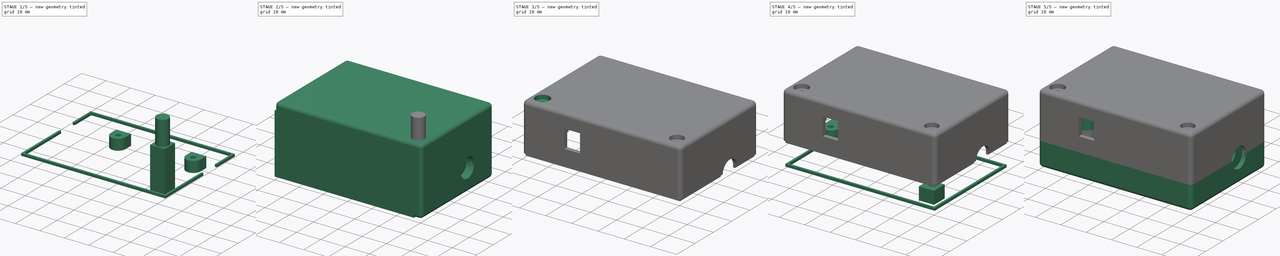
[diagram: build sequence overview — one tinted view per stage of 5, left to right]
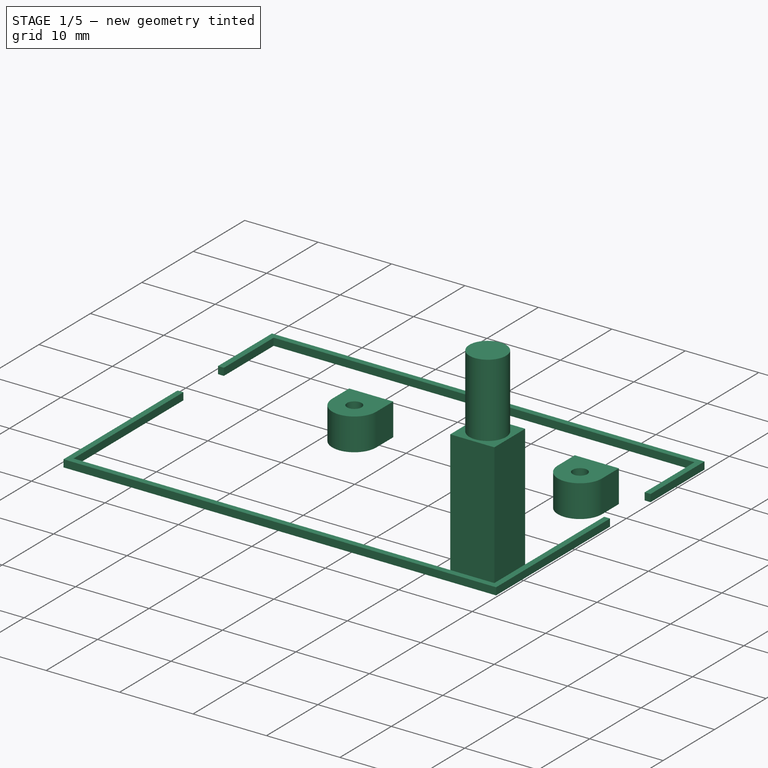
[diagram: stage 1 of 5 — iso view after this stage's code; geometry added in this stage tinted green]
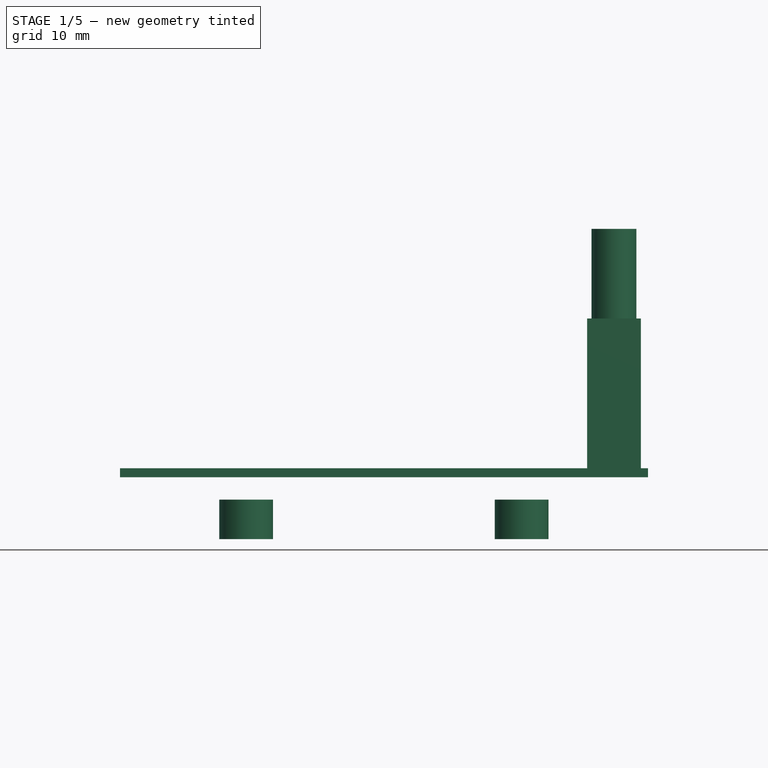
[diagram: stage 1 of 5 — front view after this stage's code; geometry added in this stage tinted green]
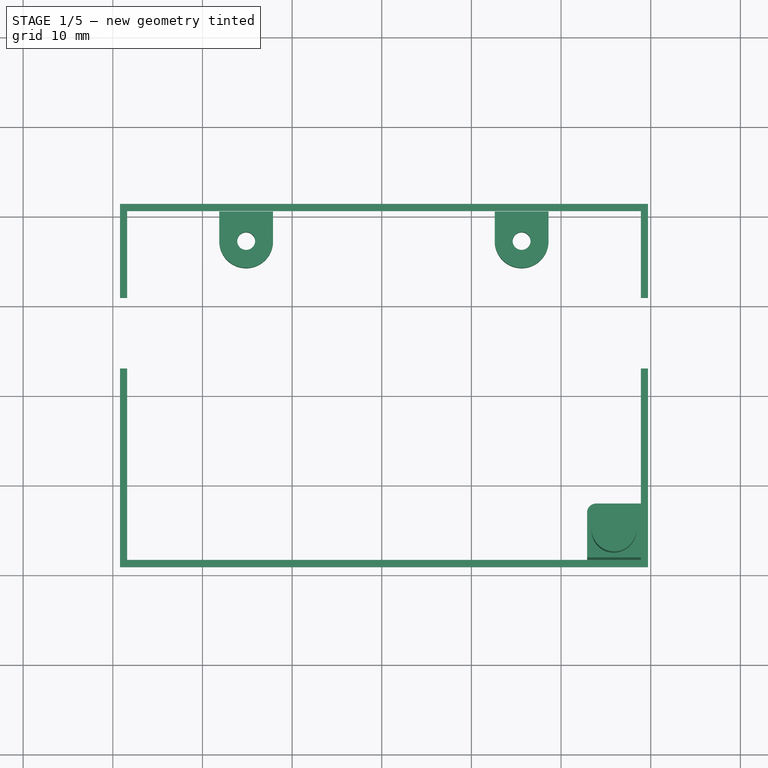
[diagram: stage 1 of 5 — top view after this stage's code; geometry added in this stage tinted green]
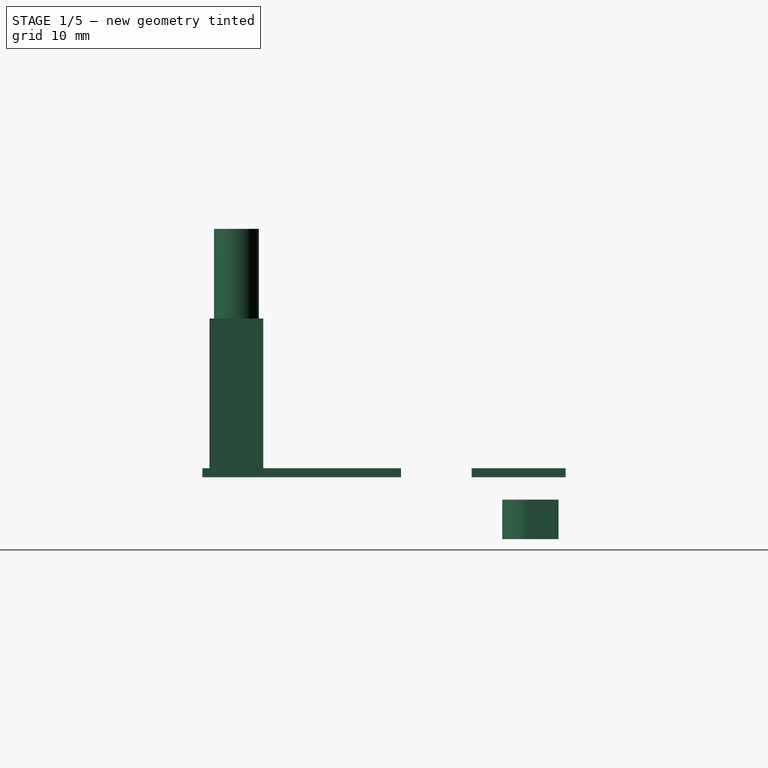
[diagram: stage 1 of 5 — right view after this stage's code; geometry added in this stage tinted green]
FCSTD DOCUMENT  (FreeCAD 1.0R39109 (Git))
Label: case
License: All rights reserved
LicenseURL: https://en.wikipedia.org/wiki/All_rights_reserved
objects: Part::Feature×36, Sketcher::SketchObject×11, PartDesign::Pad×10, App::Part×10, PartDesign::Body×10, Part::FeaturePython×10, Part::Cut×6, Part::MultiFuse×6, App::Link×5, Part::Extrusion×4, Part::Mirroring×3, Part::Plane×2, Part::Offset2D×2, Part::Face×2, Spreadsheet::Sheet×1, PartDesign::Fillet×1, PartDesign::CoordinateSystem×1, PartDesign::Boolean×1, App::DocumentObjectGroup×1
note: 135 computed .brp shape members not serialized (recipe doc carries the construction recipe); baked Part::Feature solids carry a one-line shape summary decoded from their .brp

FEATURE [Sketcher::SketchObject] Sketch004
  ArcFitTolerance = 1e-06
  AttachmentSupport = -> [XY_Plane017]
  FullyConstrained = true
  MakeInternals = false
  MapMode = 5
  expr: Constraints[8] = Spreadsheet.pcb_to_case_clearence + 2.275
  sketch-geometry (5):
    g0: ArcOfCircle CenterX=3 CenterY=3.275 CenterZ=0 NormalX=0 NormalY=0 NormalZ=1 AngleXU=0 Radius=3 StartAngle=0 EndAngle=3.14159
    g1: LineSegment StartX=0 StartY=3.275 StartZ=0 EndX=0 EndY=0 EndZ=0
    g2: LineSegment StartX=0 StartY=0 StartZ=0 EndX=6 EndY=0 EndZ=0
    g3: LineSegment StartX=6 StartY=0 StartZ=0 EndX=6 EndY=3.275 EndZ=0
    g4: Circle CenterX=3 CenterY=3.275 CenterZ=0 NormalX=0 NormalY=0 NormalZ=1 AngleXU=0 Radius=1
  constraints (14):
    c: Coincident(g1,g0)
    c: Vertical(g1)
    c: Coincident(g2,g1)
    c: Horizontal(g2)
    c: Coincident(g3,g2)
    c: Coincident(g3,g0)
    c: Vertical(g3)
    c: DistanceX(g2,g2) = 6
    c: DistanceY(g1,g1) = 3.275
    c: Equal(g1,g3)
    c: Horizontal(g0,g0)
    c: Diameter(g4) = 2
    c: Coincident(g4,g0)
    c: Coincident(g-1,g1)
FEATURE [PartDesign::Pad] Pad004
  Direction = (0,0,1)
  Length = 4.4
  Length2 = 10
  Profile = -> Sketch004
  ReferenceAxis = -> Sketch004 [N_Axis]
  Refine = true
  Suppressed = false
  Type = 0
  expr: Length = Spreadsheet.pcb_mounting_standoff_height - Spreadsheet.wall_width
FEATURE [PartDesign::Body] Body004  label="Körper"
  AllowCompound = false
  Group = -> [Sketch004,Pad004]
  Origin = -> Origin017
  Placement = pos=(11.875,1.6,1.6) rot=(0,0,1;0rad)
  Tip = -> Pad004
  expr: .Placement.Base.x = Spreadsheet.wall_width + Spreadsheet.pcb_to_case_clearence + Spreadsheet.cable_clamp_width + 2.275 - 3
  expr: .Placement.Base.y = Spreadsheet.wall_width
  expr: .Placement.Base.z = Spreadsheet.wall_width
FEATURE [Part::FeaturePython] Array001  label="Standoffs"  # Draft array (typed FeaturePython)
  AlwaysSyncPlacement = false
  Angle = 360
  ArrayType = 0
  Axis = (0,0,1)
  Base = -> Body004
  Center = (0,0,0)
  Count = 2
  ExpandArray = false
  Fuse = false
  IntervalAxis = (0,0,0)
  IntervalX = (30.725,0,0)
  IntervalY = (0,100,0)
  IntervalZ = (0,0,100)
  NumberCircles = 3
  NumberPolar = 5
  NumberX = 2
  NumberY = 1
  NumberZ = 1
  PlacementList = 2 placements: [(11.875,1.6,1.6),(42.6,1.6,1.6)]
  RadialDistance = 50
  ScaleList = (2) [(1,1,1),(1,1,1)]
  Symmetry = 1
  TangentialDistance = 25
FEATURE [Part::Mirroring] Part__Mirroring  label="Standoffs (Mirror #1)"
  Base = (0,0,0)
  Normal = (0,1,0)
  Placement = pos=(0,42.125,0) rot=(0,0,1;0rad)
  Source = -> Array001
  expr: .Placement.Base.y = Spreadsheet.wall_width * 2 + Spreadsheet.pcb_to_case_clearence * 2 + Spreadsheet.pcb_length
  expr: .Placement.Base.z = 0
FEATURE [Part::Feature] Face
  shape: bbox 58.9 x 10.49 x 2e-07 mm, 1 faces, 0 solids (baked)
FEATURE [Part::Extrusion] Extrude
  Base = -> Face
  Dir = (0,0,1)
  DirMode = 2
  FaceMakerClass = Part::FaceMakerBullseye
  FaceMakerMode = 3
  LengthFwd = 1
  LengthRev = 0
  Solid = false
  Symmetric = false
FEATURE [Part::Feature] Face001
  shape: bbox 58.9 x 22.16 x 2e-07 mm, 1 faces, 0 solids (baked)
FEATURE [Part::Extrusion] Extrude001
  Base = -> Face001
  Dir = (0,0,1)
  DirMode = 2
  FaceMakerClass = Part::FaceMakerBullseye
  FaceMakerMode = 3
  LengthFwd = 1
  LengthRev = 0
  Solid = false
  Symmetric = false
FEATURE [Sketcher::SketchObject] Sketch009
  ArcFitTolerance = 1e-06
  AttachmentSupport = -> [XY_Plane022]
  FullyConstrained = true
  MakeInternals = false
  MapMode = 5
  sketch-geometry (8):
    g0: LineSegment StartX=0 StartY=6 StartZ=0 EndX=0 EndY=0 EndZ=0
    g1: LineSegment StartX=0 StartY=0 StartZ=0 EndX=6 EndY=0 EndZ=0
    g2: LineSegment StartX=6 StartY=0 StartZ=0 EndX=6 EndY=5 EndZ=0
    g3: LineSegment StartX=5 StartY=6 StartZ=0 EndX=0 EndY=6 EndZ=0
    g4: ArcOfCircle CenterX=5 CenterY=5 CenterZ=0 NormalX=0 NormalY=0 NormalZ=1 AngleXU=0 Radius=1 StartAngle=2.84e-14 EndAngle=1.5708
    g5: GeomPoint [constr] X=6 Y=6 Z=0
    g6: GeomPoint X=3 Y=3 Z=0
    g7: Circle CenterX=3 CenterY=3 CenterZ=0 NormalX=0 NormalY=0 NormalZ=1 AngleXU=0 Radius=1.2
  constraints (18):
    c: Coincident(g0,g1)
    c: Coincident(g1,g2)
    c: Coincident(g3,g0)
    c: Vertical(g0)
    c: Vertical(g2)
    c: Horizontal(g1)
    c: Horizontal(g3)
    c: PointOnObject(g5,g2)
    c: PointOnObject(g5,g3)
    c: Tangent(g2,g4) = -1.5708
    c: Tangent(g3,g4) = -1.5708
    c: DistanceX(g1,g1) = 6
    c: Equal(g0,g1)
    c: Radius(g4) = 1
    c: Coincident(g0,g-1)
    c: Symmetric(g0,g1,g6)
    c: Diameter(g7) = 2.4
    c: Coincident(g7,g6)
FEATURE [PartDesign::Pad] Pad009
  Direction = (0,0,1)
  Length = 17
  Length2 = 10
  Profile = -> Sketch009
  ReferenceAxis = -> Sketch009 [N_Axis]
  Refine = true
  Suppressed = false
  Type = 0
  expr: Length = Spreadsheet.top_assembly_height + Spreadsheet.pcb_to_case_clearence
FEATURE [PartDesign::Body] Body009  label="Körper005"
  AllowCompound = false
  Group = -> [Sketch009,Pad009]
  Origin = -> Origin022
  Placement = pos=(1.6,1.6,9.2) rot=(0,0,1;0rad)
  Tip = -> Pad009
  expr: .Placement.Base.x = Spreadsheet.wall_width
  expr: .Placement.Base.y = Spreadsheet.wall_width
  expr: .Placement.Base.z = Spreadsheet.wall_width + Spreadsheet.pcb_mounting_standoff_height + Spreadsheet.pcb_thickness
FEATURE [Part::Mirroring] Part__Mirroring002  label="Körper005 (Mirror #3)"
  Base = (0,0,0)
  Normal = (1,0,0)
  Placement = pos=(60.5,0,0) rot=(0,0,1;0rad)
  Source = -> Body009
  expr: .Placement.Base.x = Spreadsheet.wall_width * 2 + Spreadsheet.pcb_to_case_clearence * 2 + Spreadsheet.pcb_width + Spreadsheet.cable_clamp_width * 2
FEATURE [Part::Feature] Wire
  shape: bbox 2.4 x 2.4 x 2e-07 mm, 0 faces, 0 solids (baked)
FEATURE [Part::Offset2D] Offset2D
  Fill = false
  Intersection = false
  Join = 0
  Mode = 1
  SelfIntersection = false
  Source = -> Wire
  Value = -1.3
FEATURE [Part::Face] Face002
  FaceMakerClass = Part::FaceMakerBullseye
  Sources = -> [Offset2D]
FEATURE [Part::Extrusion] Extrude002
  Base = -> Face002
  Dir = (0,0,1)
  DirMode = 2
  FaceMakerClass = Part::FaceMakerBullseye
  FaceMakerMode = 3
  LengthFwd = 10
  LengthRev = 0
  Solid = false
  Symmetric = false
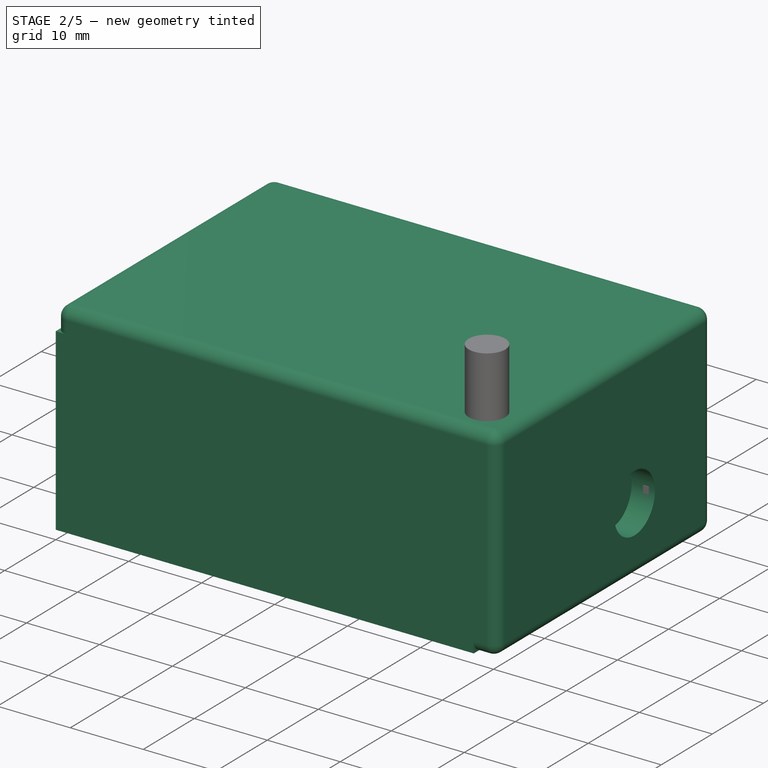
[diagram: stage 2 of 5 — iso view after this stage's code; geometry added in this stage tinted green]
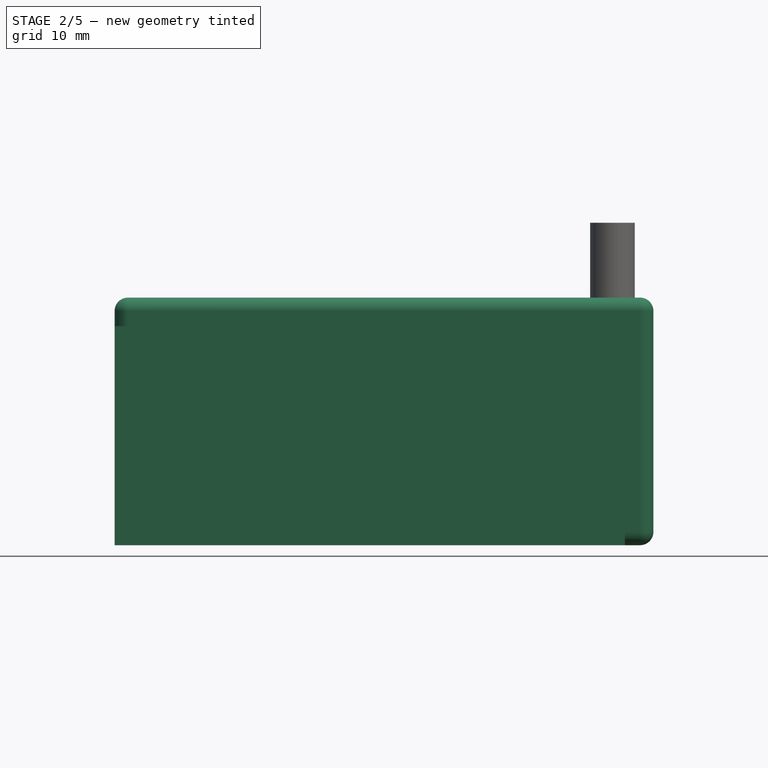
[diagram: stage 2 of 5 — front view after this stage's code; geometry added in this stage tinted green]
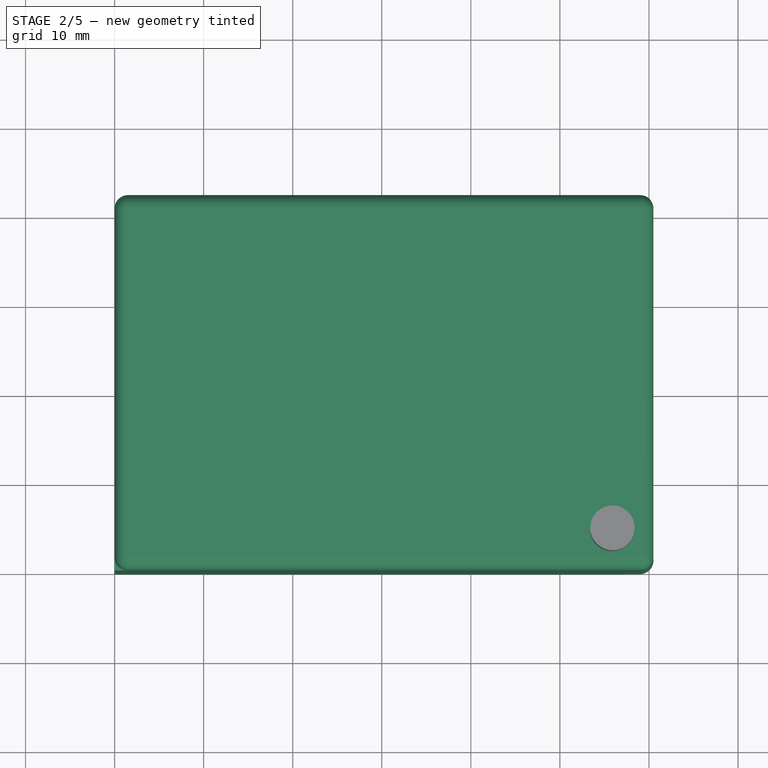
[diagram: stage 2 of 5 — top view after this stage's code; geometry added in this stage tinted green]
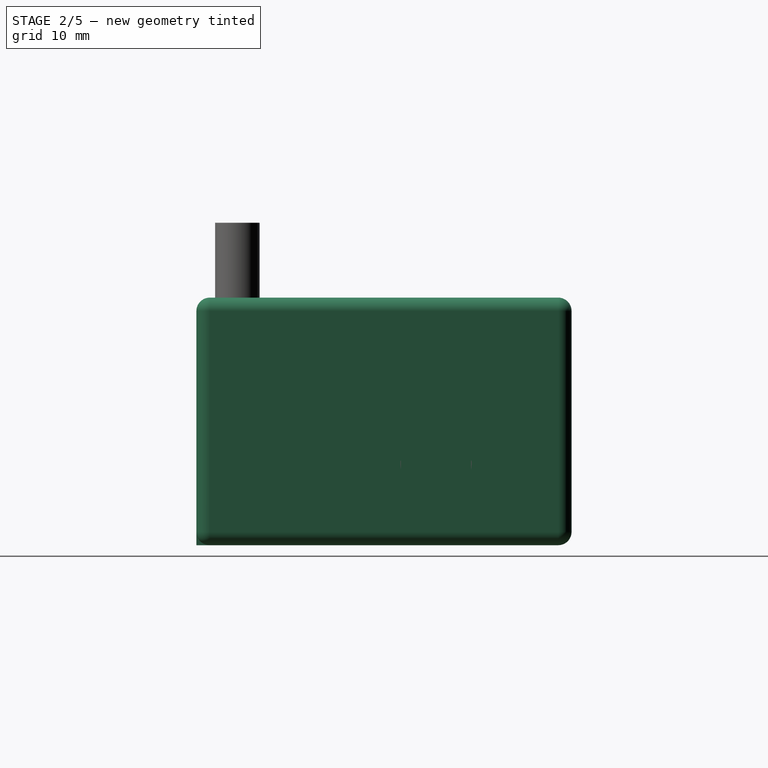
[diagram: stage 2 of 5 — right view after this stage's code; geometry added in this stage tinted green]
FEATURE [Sketcher::SketchObject] Sketch
  ArcFitTolerance = 1e-06
  AttachmentSupport = -> [XY_Plane013]
  FullyConstrained = true
  MakeInternals = false
  MapMode = 5
  expr: Constraints[8] = Spreadsheet.pcb_width + 2 * Spreadsheet.pcb_to_case_clearence + 2 * Spreadsheet.wall_width + 2 * Spreadsheet.cable_clamp_width
  expr: Constraints[9] = Spreadsheet.pcb_length + 2 * Spreadsheet.pcb_to_case_clearence + 2 * Spreadsheet.wall_width
  sketch-geometry (4):
    g0: LineSegment StartX=0 StartY=42.125 StartZ=0 EndX=0 EndY=0 EndZ=0
    g1: LineSegment StartX=0 StartY=0 StartZ=0 EndX=60.5 EndY=0 EndZ=0
    g2: LineSegment StartX=60.5 StartY=0 StartZ=0 EndX=60.5 EndY=42.125 EndZ=0
    g3: LineSegment StartX=60.5 StartY=42.125 StartZ=0 EndX=0 EndY=42.125 EndZ=0
  constraints (11):
    c: Coincident(g0,g1)
    c: Coincident(g1,g2)
    c: Coincident(g2,g3)
    c: Coincident(g3,g0)
    c: Vertical(g0)
    c: Vertical(g2)
    c: Horizontal(g1)
    c: Horizontal(g3)
    c: DistanceX(g3,g3) = 60.5
    c: DistanceY(g2,g2) = 42.125
    c: Coincident(g-1,g0)
FEATURE [PartDesign::Pad] Pad
  Direction = (0,0,1)
  Length = 27.8
  Length2 = 10
  Profile = -> Sketch
  ReferenceAxis = -> Sketch [N_Axis]
  Refine = true
  Suppressed = false
  Type = 0
  expr: Length = Spreadsheet.pcb_to_case_clearence + 2 * Spreadsheet.wall_width + Spreadsheet.pcb_mounting_standoff_height + Spreadsheet.top_assembly_height + Spreadsheet.pcb_thickness
FEATURE [Spreadsheet::Sheet] Spreadsheet
  cells = A1='pcb_length; B1(pcb_length)=36.925; A2='pcb_width; B2(pcb_width)=35.3; A3='wall_width; B3(wall_width)=1.6; A4='pcb_to_case_clearence; B4(pcb_to_case_clearence)=1; A5='cable_clamp_width; B5(cable_clamp_width)=10; A6='bottom_assembly_height; B6(bottom_assembly_height)=3; A7='top_assembly_height; B7(top_assembly_height)=16; A8='pcb_thickness; B8(pcb_thickness)=1.6; A9='pcb_mounting_standoff_height; B9(pcb_mounting_standoff_height)=6; A10='ir_receiver_pos_x; B10(ir_receiver_pos_x)=3.5; A11='ir_receiver_pos_z; B11(ir_receiver_pos_z)=6; A12='ir_receiver_package_height; B12(ir_receiver_package_height)=7; A13='ir_receiver_package_width; B13(ir_receiver_package_width)=6; A14='ir_receiver_clearence; B14(ir_receiver_clearence)=1; A15='cable_inlet_pos_y; B15(cable_inlet_pos_y)=24.3; A16='cable_inlet_diameter; B16(cable_inlet_diameter)=8
FEATURE [PartDesign::Fillet] Fillet
  Base = -> Pad [Edge1]
  BaseFeature = -> Pad
  Radius = 1.5
  Refine = true
  SupportTransform = false
  Suppressed = false
  UseAllEdges = true
FEATURE [PartDesign::CoordinateSystem] Local_CS_ec94
  AttacherType = Attacher::AttachEngine3D
  MapMode = 2
FEATURE [Part::Feature] Pcb_ec94
  Placement = pos=(-85.3,71.725,0) rot=(0,0,1;0rad)
  shape: bbox 35.3 x 36.93 x 1.67 mm, 29 faces (baked)
FEATURE [Sketcher::SketchObject] PCB_Sketch_ec94
  ArcFitTolerance = 1e-06
  FullyConstrained = false
  MakeInternals = false
  sketch-geometry (4):
    g0: LineSegment StartX=0 StartY=36.925 StartZ=0 EndX=35.3 EndY=36.925 EndZ=0
    g1: LineSegment StartX=35.3 StartY=36.925 StartZ=0 EndX=35.3 EndY=0 EndZ=0
    g2: LineSegment StartX=35.3 StartY=0 StartZ=0 EndX=0 EndY=0 EndZ=0
    g3: LineSegment StartX=0 StartY=0 StartZ=0 EndX=0 EndY=36.925 EndZ=0
  constraints (4):
    c: Coincident(g2,g3)
    c: Coincident(g0,g3)
    c: Coincident(g1,g2)
    c: Coincident(g0,g1)
FEATURE [Part::Feature] Shape  label="U2_SOT_23_5_863a62e270d0"
  Placement = pos=(8.44,10.5675,0) rot=(0,0,-1;1.5708rad)
  shape: bbox 2.9 x 2.8 x 1.55 mm, 109 faces (baked)
FEATURE [Part::Feature] Shape001  label="J2_TerminalBlock_Phoenix_PT_15_3_50_H_1x03_P500mm_Horizontal_8e5a26944e39"
  Placement = pos=(30.3,19.325,0) rot=(0,0,1;1.5708rad)
  shape: bbox 9 x 15.57 x 15 mm, 176 faces (baked)
FEATURE [Part::Feature] Part__Feature  label="GO-100184"
  shape: bbox 6 x 6.95 x 5.55 mm, 17 faces (baked)
FEATURE [Part::Feature] Part__Feature001  label="GO-100184.032"
  Placement = pos=(8.6e-15,-4.25,1.3) rot=(0,0,1;0rad)
  shape: bbox 1.24 x 6 x 5.2 mm, 30 faces (baked)
FEATURE [Part::Feature] Part__Feature002  label="GO-100184.033"
  Placement = pos=(8.6e-15,-4.25,1.3) rot=(0,0,1;0rad)
  shape: bbox 0.7 x 6 x 5.2 mm, 22 faces (baked)
FEATURE [Part::Feature] Part__Feature003  label="GO-100184.034"
  Placement = pos=(8.6e-15,-4.25,1.3) rot=(0,0,1;0rad)
  shape: bbox 1.24 x 6 x 5.2 mm, 30 faces (baked)
FEATURE [App::Part] GO_100184_032  label="GO-100184.035"
  Group = -> [Part__Feature001,Part__Feature002,Part__Feature003]
  Origin = -> Origin008
FEATURE [App::Part] GO_100184_32  label="A1_82736Mold_DL_21170e808637"
  Group = -> [Part__Feature,GO_100184_032]
  Origin = -> Origin009
  Placement = pos=(7.953,5.48,9) rot=(1,0,0;1.5708rad)
FEATURE [Part::Feature] Shape002  label="C3_CP_Elec_10x125_846d0c8a04ca"
  Placement = pos=(17.0075,6.6,0) rot=(0,0,1;3.14159rad)
  shape: bbox 13.47 x 13.66 x 12.5 mm, 41 faces (baked)
FEATURE [Part::Feature] Shape003  label="C6_C_0805_2012Metric_19e55b627c06"
  Placement = pos=(8.465,7.43,0) rot=(0,0,1;3.14159rad)
  shape: bbox 2 x 1.25 x 1.25 mm, 28 faces (baked)
FEATURE [App::Link] J2_TerminalBlock_Phoenix_PT_15_3_50_H_1x03_P500mm_Horizontal_8e5a26944e39_ln_  label="J1_TerminalBlock_Phoenix_PT_15_3_50_H_1x03_P500mm_Horizontal_288ad81824c9"
  LinkPlacement = pos=(5,29.325,0) rot=(0,0,-1;1.5708rad)
  LinkedObject = -> Shape001
  Placement = pos=(5,29.325,0) rot=(0,0,-1;1.5708rad)
FEATURE [Part::Feature] Shape004  label="R4_R_Axial_DIN0516_L155mm_D50mm_P762mm_Vertical_b73bf4800ee1"
  Placement = pos=(32.325,13.485,0) rot=(0,0,-1;1.5708rad)
  shape: bbox 5.412 x 10.86 x 22.23 mm, 17 faces (baked)
FEATURE [Part::Feature] Shape005  label="C1_C_Rect_L180mm_W80mm_P1500mm_FKS3_FKP3_27f843e74350"
  Placement = pos=(21.375,29.525,0) rot=(0,0,-1;1.5708rad)
  shape: bbox 8 x 18 x 16.9 mm, 22 faces (baked)
FEATURE [Part::Feature] Shape006  label="D1_Diode_Bridge_Diotec_ABS_f9176e805c13"
  Placement = pos=(26.65,8.8,0) rot=(0,0,1;1.5708rad)
  shape: bbox 5 x 6.2 x 1.6 mm, 44 faces (baked)
FEATURE [Part::Feature] Part__Feature004  label="36911000000"
  shape: bbox 8.5 x 8 x 4 mm, 35 faces (baked)
FEATURE [Part::Feature] Part__Feature005  label="36911000000001"
  shape: bbox 0.6 x 19.9 x 0.6 mm, 4 faces (baked)
FEATURE [Part::Feature] Part__Feature006  label="36911000000002"
  shape: bbox 0.6 x 19.9 x 0.6 mm, 4 faces (baked)
FEATURE [App::Part] _6911000000  label="F1_36911000000003_523b0714f035[2]"
  Group = -> [Part__Feature004,Part__Feature005,Part__Feature006]
  Origin = -> Origin010
  Placement = pos=(21.4,34.025,0) rot=(1,0,0;1.5708rad)
FEATURE [Part::Feature] Part__Feature007  label="100101"
  shape: bbox 3.961 x 21.53 x 23.63 mm, 125 faces, 0 solids (baked)
FEATURE [Part::Feature] Part__Feature008  label="100101001"
  shape: bbox 0.04468 x 1.209 x 3.516 mm, 13 faces, 0 solids (baked)
FEATURE [Part::Feature] Part__Feature009  label="100101002"
  shape: bbox 0.03884 x 1.296 x 2.389 mm, 8 faces, 0 solids (baked)
FEATURE [Part::Feature] Part__Feature010  label="100101003"
  shape: bbox 0.04414 x 1.576 x 2.551 mm, 8 faces, 0 solids (baked)
FEATURE [Part::Feature] Part__Feature011  label="100101004"
  shape: bbox 0.04511 x 1.582 x 2.758 mm, 9 faces, 0 solids (baked)
FEATURE [Part::Feature] Part__Feature012  label="100101005"
  shape: bbox 0.03983 x 1.191 x 1.959 mm, 7 faces, 0 solids (baked)
FEATURE [Part::Feature] Part__Feature013  label="100101006"
  shape: bbox 0.03814 x 1.218 x 1.741 mm, 5 faces, 0 solids (baked)
FEATURE [App::Part] _00101  label="K1_100101007_b6f01e361f50"
  Group = -> [Part__Feature007,Part__Feature008,Part__Feature009,Part__Feature010,Part__Feature011,Part__Feature012,Part__Feature013]
  Origin = -> Origin011
  Placement = pos=(24.5015,32.625,-17) rot=(0,0.707107,0.707107;3.14159rad)
FEATURE [Part::Feature] Shape007  label="D2_D_SOD_123F_6e59eb8ac936"
  Placement = pos=(26.825,3.25,0) rot=(0,0,1;0rad)
  shape: bbox 3.5 x 1.6 x 1.1 mm, 27 faces (baked)
FEATURE [App::Link] C6_C_0805_2012Metric_19e55b627c06_ln_  label="C5_C_0805_2012Metric_7bf58663db9d"
  LinkPlacement = pos=(5.715,8.3675,0) rot=(0,0,-1;1.5708rad)
  LinkedObject = -> Shape003
  Placement = pos=(5.715,8.3675,0) rot=(0,0,-1;1.5708rad)
FEATURE [Part::Feature] Shape008  label="C4_C_0603_1608Metric_3f43c1c5a1fa"
  Placement = pos=(7.64,13.38,0) rot=(0,0,1;0rad)
  shape: bbox 1.6 x 0.8 x 0.8 mm, 28 faces (baked)
FEATURE [App::Part] Top_ec94
  Group = -> [Shape,Shape001,GO_100184_32,Shape002,Shape003,J2_TerminalBlock_Phoenix_PT_15_3_50_H_1x03_P500mm_Horizontal_8e5a26944e39_ln_,Shape004,Shape005,Shape006,_6911000000,_00101,Shape007,C6_C_0805_2012Metric_19e55b627c06_ln_,Shape008]
  Origin = -> Origin003
FEATURE [Part::Feature] Shape009  label="R3_R_0805_2012Metric_d859491b059c"
  Placement = pos=(22.125,18.775,-1.67) rot=(1,0,0;3.14159rad)
  shape: bbox 2 x 1.2 x 0.45 mm, 26 faces (baked)
FEATURE [Part::Feature] Shape010  label="Q1_SOT_23_3900012b851c"
  Placement = pos=(2.82,10.0375,0) rot=(0,0,1;1.5708rad)
  shape: bbox 3 x 2.5 x 1.2 mm, 76 faces (baked)
FEATURE [App::Link] R3_R_0805_2012Metric_d859491b059c_ln_  label="R5_R_0805_2012Metric_0fcbfa2053b6"
  LinkPlacement = pos=(2.7525,7.1375,0) rot=(0,0,1;3.14159rad)
  LinkedObject = -> Shape009
  Placement = pos=(2.7525,7.1375,0) rot=(0,0,1;3.14159rad)
FEATURE [App::Link] R3_R_0805_2012Metric_d859491b059c_ln_001  label="R2_R_0805_2012Metric_7688ddab6872"
  LinkPlacement = pos=(22.125,20.275,-1.67) rot=(0,1,0;3.14159rad)
  LinkedObject = -> Shape009
  Placement = pos=(22.125,20.275,-1.67) rot=(0,1,0;3.14159rad)
FEATURE [App::Link] R3_R_0805_2012Metric_d859491b059c_ln_002  label="R1_R_0805_2012Metric_b52fa367cd21"
  LinkPlacement = pos=(22.125,21.775,-1.67) rot=(1,0,0;3.14159rad)
  LinkedObject = -> Shape009
  Placement = pos=(22.125,21.775,-1.67) rot=(1,0,0;3.14159rad)
FEATURE [App::Part] Bot_ec94
  Group = -> [Shape009,Shape010,R3_R_0805_2012Metric_d859491b059c_ln_,R3_R_0805_2012Metric_d859491b059c_ln_001,R3_R_0805_2012Metric_d859491b059c_ln_002]
  Origin = -> Origin004
FEATURE [App::Part] Step_Models_ec94
  Group = -> [Top_ec94,Bot_ec94]
  Origin = -> Origin002
FEATURE [Sketcher::SketchObject] Sketch001
  ArcFitTolerance = 1e-06
  AttachmentSupport = -> [XY_Plane015]
  FullyConstrained = true
  MakeInternals = false
  MapMode = 5
  expr: Constraints[10] = Spreadsheet.ir_receiver_package_height
  expr: Constraints[9] = Spreadsheet.ir_receiver_package_width
  sketch-geometry (4):
    g0: LineSegment StartX=0 StartY=7 StartZ=0 EndX=0 EndY=0 EndZ=0
    g1: LineSegment StartX=0 StartY=0 StartZ=0 EndX=6 EndY=0 EndZ=0
    g2: LineSegment StartX=6 StartY=0 StartZ=0 EndX=6 EndY=7 EndZ=0
    g3: LineSegment StartX=6 StartY=7 StartZ=0 EndX=0 EndY=7 EndZ=0
  constraints (11):
    c: Coincident(g0,g1)
    c: Coincident(g1,g2)
    c: Coincident(g2,g3)
    c: Coincident(g3,g0)
    c: Vertical(g0)
    c: Vertical(g2)
    c: Horizontal(g1)
    c: Horizontal(g3)
    c: Coincident(g0,g-1)
    c: DistanceX(g3,g3) = 6
    c: DistanceY(g2,g2) = 7
FEATURE [PartDesign::Pad] Pad001
  Direction = (0,0,1)
  Length = 7
  Length2 = 10
  Profile = -> Sketch001
  ReferenceAxis = -> Sketch001 [N_Axis]
  Refine = true
  Suppressed = false
  Type = 0
  expr: Length = Spreadsheet.ir_receiver_package_height
FEATURE [PartDesign::Body] Body002  label="IR receiver opening"
  AllowCompound = false
  Group = -> [Sketch001,Pad001]
  Origin = -> Origin015
  Placement = pos=(16.1,-2,15.2) rot=(0,0,1;0rad)
  Tip = -> Pad001
  expr: .Placement.Base.x = Spreadsheet.ir_receiver_pos_x + Spreadsheet.wall_width + Spreadsheet.cable_clamp_width + Spreadsheet.pcb_to_case_clearence
  expr: .Placement.Base.z = Spreadsheet.wall_width + Spreadsheet.pcb_mounting_standoff_height + Spreadsheet.pcb_thickness + Spreadsheet.ir_receiver_pos_z
FEATURE [Part::Plane] Plane  label="Ebene"
  AttacherType = Attacher::AttachEngine3D
  Length = 67
  Placement = pos=(-3,-3,9.5) rot=(0,0,1;0rad)
  Width = 48
FEATURE [PartDesign::Boolean] Boolean
  BaseFeature = -> Fillet
  Group = -> [Body002]
  Refine = true
  Suppressed = false
  Type = 1
  UsePlacement = true
FEATURE [PartDesign::Body] Body  label="Enclosure"
  AllowCompound = false
  Group = -> [Sketch,Pad,Fillet,Boolean]
  Origin = -> Origin013
  Tip = -> Boolean
FEATURE [Sketcher::SketchObject] Sketch002
  ArcFitTolerance = 1e-06
  AttachmentSupport = -> [YZ_Plane014]
  FullyConstrained = true
  MakeInternals = false
  MapMode = 5
  Placement = pos=(0,0,0) rot=(0.57735,0.57735,0.57735;2.0944rad)
  expr: Constraints[0] = Spreadsheet.cable_inlet_diameter
  expr: Constraints[1] = Spreadsheet.cable_inlet_diameter / 2
  expr: Constraints[2] = Spreadsheet.cable_inlet_diameter / 2
  sketch-geometry (1):
    g0: Circle CenterX=4 CenterY=4 CenterZ=0 NormalX=0 NormalY=0 NormalZ=1 AngleXU=0 Radius=4
  constraints (3):
    c: Diameter(g0) = 8
    c: DistanceX(g0) = 4
    c: DistanceY(g0) = 4
FEATURE [PartDesign::Pad] Pad002
  Direction = (1,0,0)
  Length = 10
  Length2 = 10
  Placement = pos=(0,0,0) rot=(1,1,1;2.0944rad)
  Profile = -> Sketch002
  ReferenceAxis = -> Sketch002 [N_Axis]
  Refine = true
  Suppressed = false
  Type = 0
FEATURE [PartDesign::Body] Body001  label="Cable inlet"
  AllowCompound = false
  Group = -> [Sketch002,Pad002]
  Origin = -> Origin014
  Placement = pos=(-3,22.9,5.2) rot=(0,0,1;0rad)
  Tip = -> Pad002
  expr: .Placement.Base.y = Spreadsheet.cable_inlet_pos_y - Spreadsheet.cable_inlet_diameter / 2 + Spreadsheet.wall_width + Spreadsheet.pcb_to_case_clearence
  expr: .Placement.Base.z = Spreadsheet.wall_width + Spreadsheet.pcb_mounting_standoff_height + Spreadsheet.pcb_thickness - Spreadsheet.cable_inlet_diameter / 2
FEATURE [Part::FeaturePython] Array  # Draft array (typed FeaturePython)
  AlwaysSyncPlacement = false
  Angle = 360
  ArrayType = 0
  Axis = (0,0,1)
  Base = -> Body001
  Center = (0,0,0)
  Count = 2
  ExpandArray = false
  Fuse = false
  IntervalAxis = (0,0,0)
  IntervalX = (56,0,0)
  IntervalY = (0,100,7)
  IntervalZ = (0,0,100)
  NumberCircles = 3
  NumberPolar = 5
  NumberX = 2
  NumberY = 1
  NumberZ = 1
  PlacementList = 2 placements: [(-3,22.9,5.2),(53,22.9,5.2)]
  RadialDistance = 50
  ScaleList = (2) [(1,1,1),(1,1,1)]
  Symmetry = 1
  TangentialDistance = 25
FEATURE [Part::Cut] Cut  label="Enclosure001"
  Base = -> Body
  Refine = true
  Tool = -> Array
FEATURE [Sketcher::SketchObject] Sketch003
  ArcFitTolerance = 1e-06
  AttachmentSupport = -> [XY_Plane016]
  FullyConstrained = true
  MakeInternals = false
  MapMode = 5
  expr: Constraints[8] = Spreadsheet.pcb_to_case_clearence * 2 + Spreadsheet.cable_clamp_width * 2 + Spreadsheet.pcb_width
  expr: Constraints[9] = Spreadsheet.pcb_length + 2 * Spreadsheet.pcb_to_case_clearence
  sketch-geometry (4):
    g0: LineSegment StartX=0 StartY=38.925 StartZ=0 EndX=0 EndY=0 EndZ=0
    g1: LineSegment StartX=0 StartY=0 StartZ=0 EndX=57.3 EndY=0 EndZ=0
    g2: LineSegment StartX=57.3 StartY=0 StartZ=0 EndX=57.3 EndY=38.925 EndZ=0
    g3: LineSegment StartX=57.3 StartY=38.925 StartZ=0 EndX=0 EndY=38.925 EndZ=0
  constraints (11):
    c: Coincident(g0,g1)
    c: Coincident(g1,g2)
    c: Coincident(g2,g3)
    c: Coincident(g3,g0)
    c: Vertical(g0)
    c: Vertical(g2)
    c: Horizontal(g1)
    c: Horizontal(g3)
    c: DistanceX(g3,g3) = 57.3
    c: DistanceY(g2,g2) = 38.925
    c: Coincident(g0,g-1)
FEATURE [PartDesign::Pad] Pad003
  Direction = (0,0,1)
  Length = 24.6
  Length2 = 10
  Profile = -> Sketch003
  ReferenceAxis = -> Sketch003 [N_Axis]
  Refine = true
  Suppressed = false
  Type = 0
  expr: Length = Spreadsheet.pcb_thickness + Spreadsheet.pcb_mounting_standoff_height + Spreadsheet.top_assembly_height + Spreadsheet.pcb_to_case_clearence
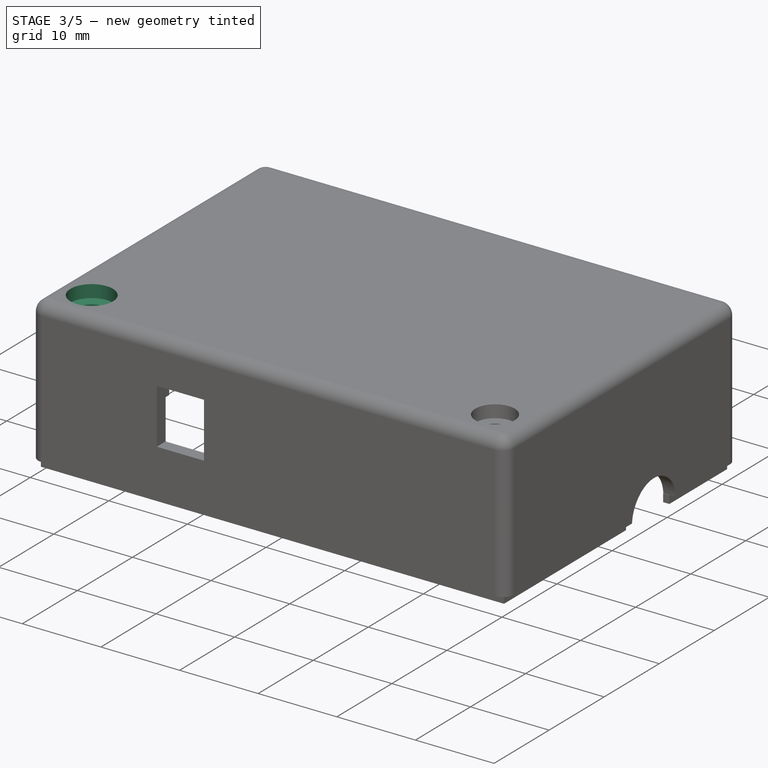
[diagram: stage 3 of 5 — iso view after this stage's code; geometry added in this stage tinted green]
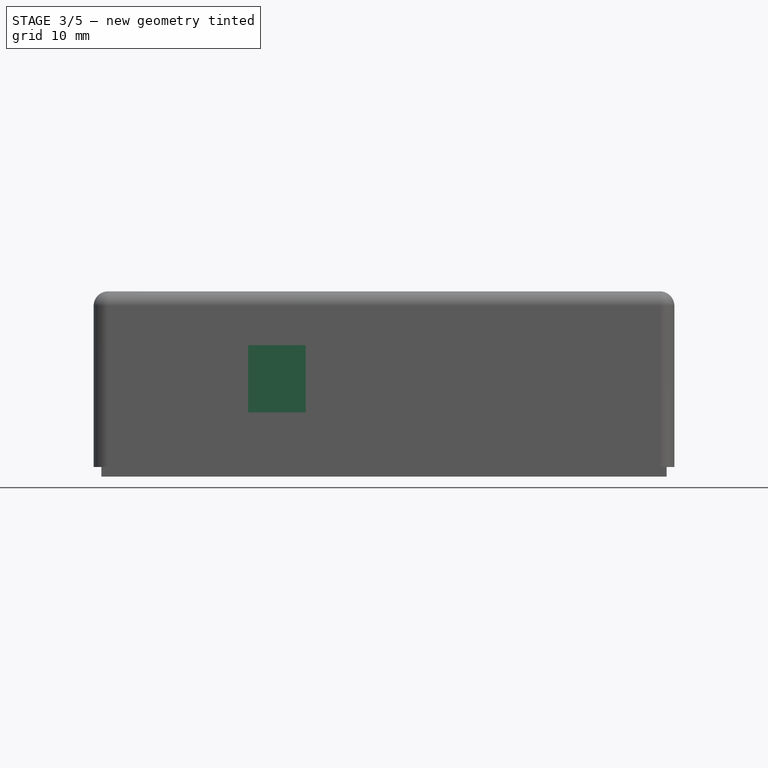
[diagram: stage 3 of 5 — front view after this stage's code; geometry added in this stage tinted green]
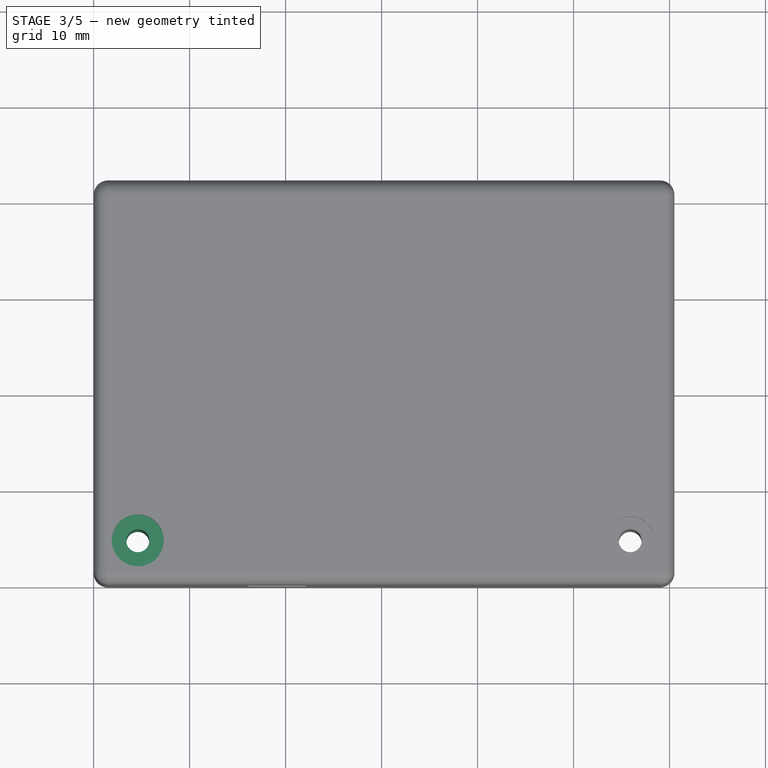
[diagram: stage 3 of 5 — top view after this stage's code; geometry added in this stage tinted green]
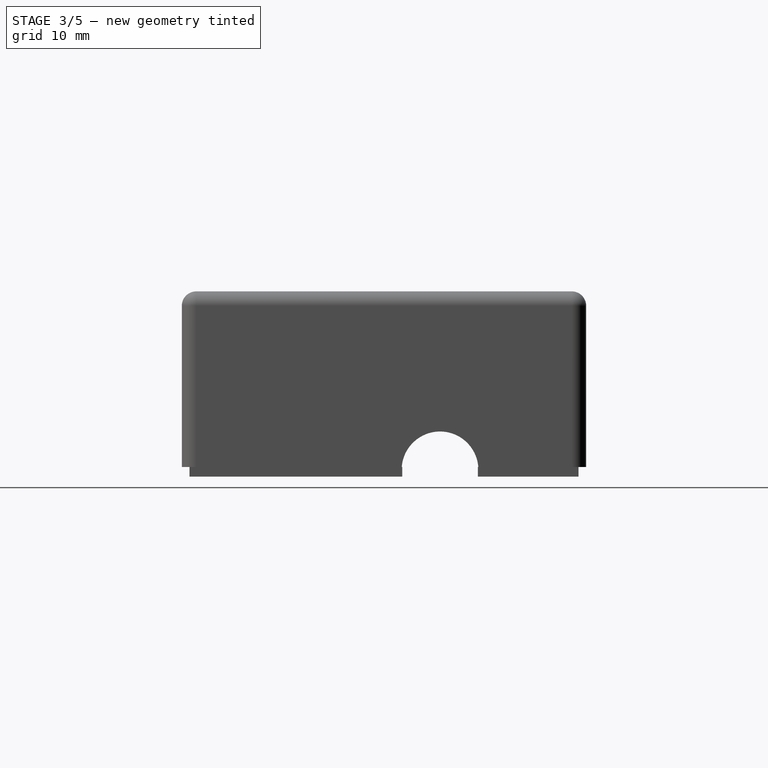
[diagram: stage 3 of 5 — right view after this stage's code; geometry added in this stage tinted green]
FEATURE [PartDesign::Body] Body003  label="Inner"
  AllowCompound = false
  Group = -> [Sketch003,Pad003]
  Origin = -> Origin016
  Placement = pos=(1.6,1.6,1.6) rot=(0,0,1;0rad)
  Tip = -> Pad003
  expr: .Placement.Base.x = Spreadsheet.wall_width
  expr: .Placement.Base.y = Spreadsheet.wall_width
  expr: .Placement.Base.z = Spreadsheet.wall_width
FEATURE [Part::Cut] Cut001  label="Hollow case"
  Base = -> Cut
  Refine = true
  Tool = -> Body003
FEATURE [Part::MultiFuse] Fusion  label="Closed case"
  Refine = true
  Shapes = -> [Part__Mirroring,Cut001]
FEATURE [Part::FeaturePython] Slice  # WARN: FeaturePython — macro-defined, semantics opaque (R4)
  Base = -> Fusion
  Mode = 1
  Tolerance = 0
  Tools = -> [Plane]
FEATURE [Part::FeaturePython] Slice_child1  label="Slice.1"  # WARN: FeaturePython — macro-defined, semantics opaque (R4)
  Base = -> Slice
  FilterType = 1
  Invert = false
  OverrideMaxVal = 0
  WindowFrom = 80
  WindowTo = 100
  items = 1
FEATURE [Part::MultiFuse] Fusion003
  Refine = true
  Shapes = -> [Extrude001,Extrude,Slice_child1]
FEATURE [Part::MultiFuse] Fusion005
  Refine = true
  Shapes = -> [Body009,Part__Mirroring002,Fusion003]
FEATURE [Part::Feature] Wire001
  shape: bbox 2.4 x 2.4 x 2e-07 mm, 0 faces, 0 solids (baked)
FEATURE [Part::Offset2D] Offset2D001
  Fill = false
  Intersection = false
  Join = 0
  Mode = 1
  SelfIntersection = false
  Source = -> Wire001
  Value = 1.5
FEATURE [Part::Face] Face003
  FaceMakerClass = Part::FaceMakerBullseye
  Sources = -> [Offset2D001]
FEATURE [Part::Extrusion] Extrude003
  Base = -> Face003
  Dir = (0,0,1)
  DirMode = 2
  FaceMakerClass = Part::FaceMakerBullseye
  FaceMakerMode = 3
  LengthFwd = 10
  LengthRev = 0
  Solid = false
  Symmetric = false
FEATURE [Part::Cut] Cut004
  Base = -> Fusion005
  Refine = true
  Tool = -> Extrude002
FEATURE [Part::Cut] Cut005  label="Top final"
  Base = -> Cut004
  Refine = true
  Tool = -> Extrude003
FEATURE [App::Part] Part  label="Case001"
  Group = -> [Body001,Body004,Plane001,Body005,Body006,Cut002,Slice001,Slice001_child0,Slice001_child1,GrExplode_Slice001,Array003,Cut003,Body,Plane,Array,Cut,Body003,Cut001,Array001,Part__Mirroring,Fusion,Slice,Slice_child0,Slice_child1,Fusion001,Body009,Array002,Fusion002,Body007,Face,Part__Mirroring002,Extrude,Extrude001,Fusion003,Face001,Body008,Part__Mirroring001,Fusion004,Fusion005,Face002,Offset2D,+6 more]
  Origin = -> Origin012
FEATURE [Part::Feature] pads_area004  label="topPads_ec095"
  Placement = pos=(-85.3,71.725,0.02) rot=(0,0,1;0rad)
  shape: bbox 33.18 x 35.76 x 2e-07 mm, 70 faces, 0 solids (baked)
FEATURE [Part::Feature] Shape016  label="topTracks_ec095"
  Placement = pos=(-85.3,71.725,0.01) rot=(0,0,1;0rad)
  shape: bbox 30.53 x 32.92 x 2e-07 mm, 12 faces, 0 solids (baked)
FEATURE [Part::Feature] zones_area004  label="topZones_ec095"
  Placement = pos=(-85.3,71.725,0.01) rot=(0,0,1;0rad)
  shape: bbox 34.75 x 36.37 x 2e-07 mm, 9 faces, 0 solids (baked)
FEATURE [Part::Feature] pads_area006  label="botPads_ec095"
  Placement = pos=(-85.3,71.725,-1.69) rot=(0,0,1;0rad)
  shape: bbox 33.18 x 35.76 x 2e-07 mm, 52 faces, 0 solids (baked)
FEATURE [Part::Feature] Shape018  label="botTracks_ec095"
  Placement = pos=(-85.3,71.725,-1.68) rot=(0,0,1;0rad)
  shape: bbox 28.12 x 20.28 x 2e-07 mm, 6 faces, 0 solids (baked)
FEATURE [Part::Feature] zones_area006  label="botZones_ec095"
  Placement = pos=(-85.3,71.725,-1.68) rot=(0,0,1;0rad)
  shape: bbox 34.75 x 36.37 x 2e-07 mm, 3 faces, 0 solids (baked)
FEATURE [App::Part] Board_Geoms_ec94
  Group = -> [Pcb_ec94,PCB_Sketch_ec94,pads_area004,Shape016,zones_area004,pads_area006,Shape018,zones_area006]
  Origin = -> Origin
FEATURE [App::Part] Board_ec94  label="switch_pcb"
  Group = -> [Local_CS_ec94,Board_Geoms_ec94,Step_Models_ec94]
  Origin = -> Origin001
  Placement = pos=(12.6,2.6,7.6) rot=(0,0,1;0rad)
  expr: .Placement.Base.x = Spreadsheet.wall_width + Spreadsheet.pcb_to_case_clearence + Spreadsheet.cable_clamp_width
  expr: .Placement.Base.y = Spreadsheet.wall_width + Spreadsheet.pcb_to_case_clearence
  expr: .Placement.Base.z = Spreadsheet.wall_width + Spreadsheet.pcb_mounting_standoff_height
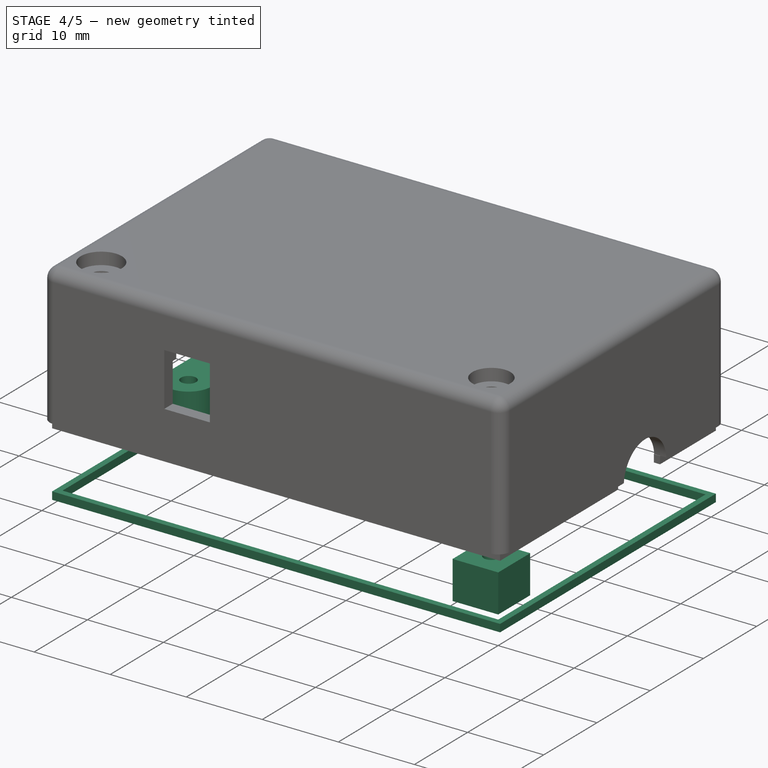
[diagram: stage 4 of 5 — iso view after this stage's code; geometry added in this stage tinted green]
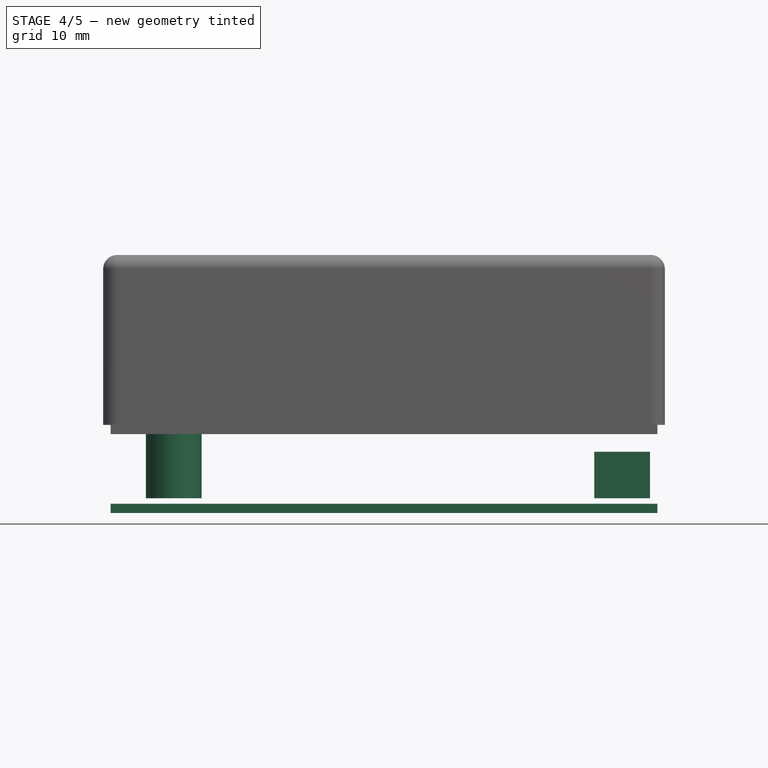
[diagram: stage 4 of 5 — front view after this stage's code; geometry added in this stage tinted green]
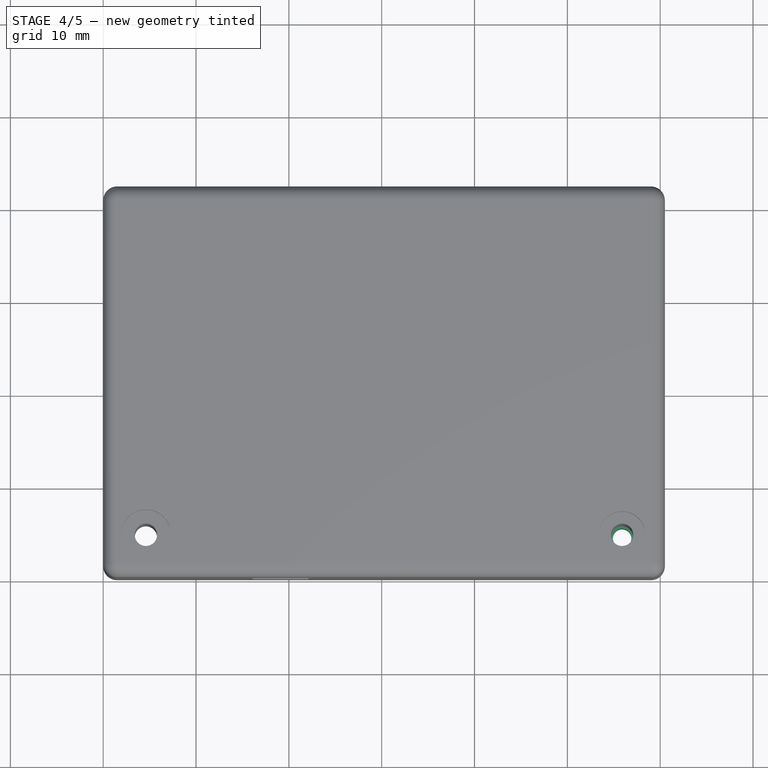
[diagram: stage 4 of 5 — top view after this stage's code; geometry added in this stage tinted green]
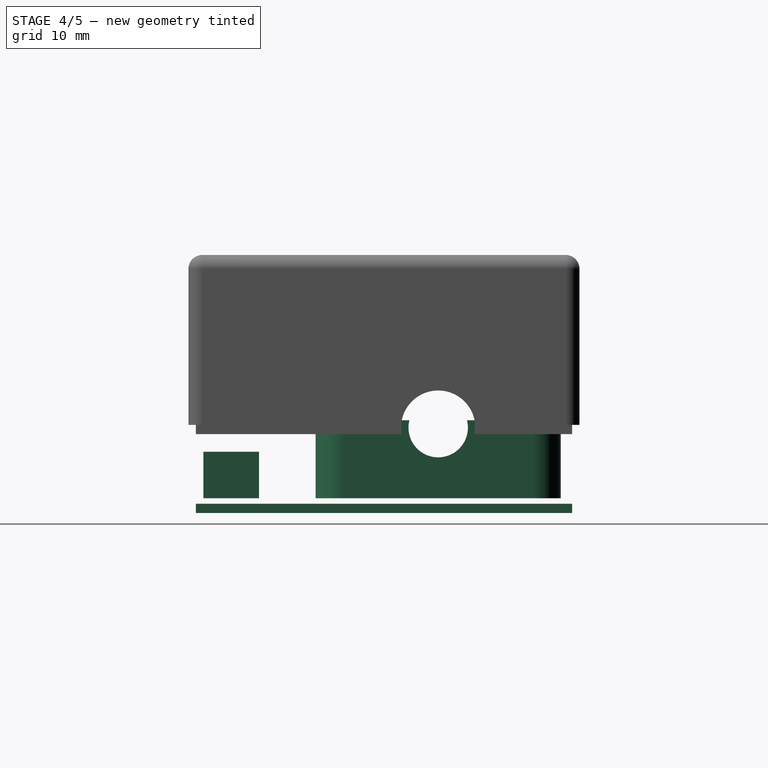
[diagram: stage 4 of 5 — right view after this stage's code; geometry added in this stage tinted green]
FEATURE [Sketcher::SketchObject] Sketch005
  ArcFitTolerance = 1e-06
  AttachmentSupport = -> [XY_Plane018]
  FullyConstrained = true
  MakeInternals = false
  MapMode = 5
  expr: Constraints[3] = Spreadsheet.cable_inlet_diameter * 1.8 + 6
  sketch-geometry (7):
    g0: LineSegment StartX=0 StartY=10.2 StartZ=0 EndX=0 EndY=-10.2 EndZ=0
    g1: GeomPoint X=0 Y=0 Z=0
    g2: LineSegment StartX=6 StartY=10.2 StartZ=0 EndX=6 EndY=-10.2 EndZ=0
    g3: ArcOfCircle CenterX=3 CenterY=10.2 CenterZ=0 NormalX=0 NormalY=0 NormalZ=1 AngleXU=0 Radius=3 StartAngle=0 EndAngle=3.14159
    g4: ArcOfCircle CenterX=3 CenterY=-10.2 CenterZ=0 NormalX=0 NormalY=0 NormalZ=1 AngleXU=0 Radius=3 StartAngle=3.14159 EndAngle=6.28319
    g5: Circle CenterX=3 CenterY=10.2 CenterZ=0 NormalX=0 NormalY=0 NormalZ=1 AngleXU=0 Radius=1
    g6: Circle CenterX=3 CenterY=-10.2 CenterZ=0 NormalX=0 NormalY=0 NormalZ=1 AngleXU=0 Radius=1
  constraints (18):
    c: Vertical(g0)
    c: Symmetric(g0,g0,g1)
    c: Coincident(g1,g-1)
    c: DistanceY(g0,g0) = 20.4
    c: Vertical(g2)
    c: Equal(g0,g2)
    c: Horizontal(g2,g0)
    c: DistanceX(g0,g2) = 6
    c: Coincident(g3,g2)
    c: Coincident(g3,g0)
    c: Coincident(g4,g0)
    c: Coincident(g4,g2)
    c: Equal(g3,g4)
    c: Horizontal(g3,g0)
    c: Diameter(g5) = 2
    c: Coincident(g5,g3)
    c: Diameter(g6) = 2
    c: Coincident(g6,g4)
FEATURE [PartDesign::Pad] Pad005
  Direction = (0,0,1)
  Length = 14
  Length2 = 10
  Profile = -> Sketch005
  ReferenceAxis = -> Sketch005 [N_Axis]
  Refine = true
  Suppressed = false
  Type = 0
  expr: Length = Spreadsheet.pcb_mounting_standoff_height + Spreadsheet.cable_inlet_diameter
FEATURE [PartDesign::Body] Body005  label="Cable relief"
  AllowCompound = false
  Group = -> [Sketch005,Pad005]
  Origin = -> Origin018
  Placement = pos=(4.6,26.9,1.6) rot=(0,0,1;0rad)
  Tip = -> Pad005
  expr: .Placement.Base.x = Spreadsheet.wall_width + Spreadsheet.pcb_to_case_clearence + Spreadsheet.cable_clamp_width / 2 - 3
  expr: .Placement.Base.y = Spreadsheet.cable_inlet_pos_y + Spreadsheet.wall_width + Spreadsheet.pcb_to_case_clearence
  expr: .Placement.Base.z = Spreadsheet.wall_width
FEATURE [Part::Plane] Plane001  label="Ebene001"
  AttacherType = Attacher::AttachEngine3D
  Length = 17
  Placement = pos=(0,11,10) rot=(0,0,1;0rad)
  Width = 31
FEATURE [Sketcher::SketchObject] Sketch006
  ArcFitTolerance = 1e-06
  AttachmentSupport = -> [YZ_Plane019]
  FullyConstrained = true
  MakeInternals = false
  MapMode = 5
  Placement = pos=(0,0,0) rot=(0.57735,0.57735,0.57735;2.0944rad)
  expr: Constraints[0] = Spreadsheet.cable_inlet_diameter * 0.8
  sketch-geometry (1):
    g0: Circle CenterX=0 CenterY=0 CenterZ=0 NormalX=0 NormalY=0 NormalZ=1 AngleXU=0 Radius=3.2
  constraints (2):
    c: Diameter(g0) = 6.4
    c: Coincident(g0,g-1)
FEATURE [PartDesign::Pad] Pad006
  Direction = (1,0,0)
  Length = 10
  Length2 = 10
  Placement = pos=(0,0,0) rot=(1,1,1;2.0944rad)
  Profile = -> Sketch006
  ReferenceAxis = -> Sketch006 [N_Axis]
  Refine = true
  Suppressed = false
  Type = 0
FEATURE [PartDesign::Body] Body006  label="Körper002"
  AllowCompound = false
  Group = -> [Sketch006,Pad006]
  Origin = -> Origin019
  Placement = pos=(3,26.9,9.2) rot=(0,0,1;0rad)
  Tip = -> Pad006
  expr: .Placement.Base.y = Spreadsheet.wall_width + Spreadsheet.pcb_to_case_clearence + Spreadsheet.cable_inlet_pos_y
  expr: .Placement.Base.z = Spreadsheet.pcb_mounting_standoff_height + Spreadsheet.wall_width + Spreadsheet.pcb_thickness
FEATURE [Part::Cut] Cut002  label="Cable relief001"
  Base = -> Body005
  Refine = true
  Tool = -> Body006
FEATURE [Part::FeaturePython] Slice001  # WARN: FeaturePython — macro-defined, semantics opaque (R4)
  Base = -> Cut002
  Mode = 1
  Tolerance = 0
  Tools = -> [Plane001]
FEATURE [Part::FeaturePython] Slice001_child0  label="Slice001.0"  # WARN: FeaturePython — macro-defined, semantics opaque (R4)
  Base = -> Slice001
  FilterType = 1
  Invert = false
  OverrideMaxVal = 0
  WindowFrom = 80
  WindowTo = 100
  items = 0
FEATURE [Sketcher::SketchObject] Sketch007
  ArcFitTolerance = 1e-06
  AttachmentSupport = -> [XY_Plane020]
  FullyConstrained = true
  MakeInternals = false
  MapMode = 5
  expr: Constraints[10] = Spreadsheet.wall_width / 2
  expr: Constraints[11] = Spreadsheet.wall_width / 2
  expr: Constraints[8] = Spreadsheet.wall_width + Spreadsheet.cable_clamp_width * 2 + Spreadsheet.pcb_to_case_clearence * 2 + Spreadsheet.pcb_width
  expr: Constraints[9] = Spreadsheet.wall_width + Spreadsheet.pcb_to_case_clearence * 2 + Spreadsheet.pcb_length
  sketch-geometry (13):
    g0: LineSegment StartX=0.8 StartY=41.325 StartZ=0 EndX=0.8 EndY=0.8 EndZ=0
    g1: LineSegment StartX=0.8 StartY=0.8 StartZ=0 EndX=59.7 EndY=0.8 EndZ=0
    g2: LineSegment StartX=59.7 StartY=0.8 StartZ=0 EndX=59.7 EndY=41.325 EndZ=0
    g3: LineSegment StartX=59.7 StartY=41.325 StartZ=0 EndX=0.8 EndY=41.325 EndZ=0
    g4: GeomPoint X=0.8 Y=0.8 Z=0
    g5: LineSegment StartX=58.9 StartY=40.525 StartZ=0 EndX=1.6 EndY=40.525 EndZ=0
    g6: LineSegment StartX=1.6 StartY=40.525 StartZ=0 EndX=1.6 EndY=1.6 EndZ=0
    g7: LineSegment StartX=1.6 StartY=1.6 StartZ=0 EndX=58.9 EndY=1.6 EndZ=0
    g8: LineSegment StartX=58.9 StartY=1.6 StartZ=0 EndX=58.9 EndY=40.525 EndZ=0
    g9: LineSegment [constr] StartX=58.9 StartY=40.525 StartZ=0 EndX=58.9 EndY=41.325 EndZ=0
    g10: LineSegment [constr] StartX=1.6 StartY=40.525 StartZ=0 EndX=0.8 EndY=40.525 EndZ=0
    g11: LineSegment [constr] StartX=1.6 StartY=1.6 StartZ=0 EndX=1.6 EndY=0.8 EndZ=0
    g12: LineSegment [constr] StartX=58.9 StartY=1.6 StartZ=0 EndX=59.7 EndY=1.6 EndZ=0
  constraints (41):
    c: Coincident(g0,g1)
    c: Coincident(g1,g2)
    c: Coincident(g2,g3)
    c: Coincident(g3,g0)
    c: Vertical(g0)
    c: Vertical(g2)
    c: Horizontal(g1)
    c: Horizontal(g3)
    c: DistanceX(g3,g3) = 58.9
    c: DistanceY(g2,g2) = 40.525
    c: DistanceX(g-1,g4) = 0.8
    c: DistanceY(g-1,g4) = 0.8
    c: Coincident(g4,g0)
    c: Coincident(g5,g6)
    c: Coincident(g5,g8)
    c: Coincident(g6,g7)
    c: Coincident(g7,g8)
    c: Perpendicular(g9,g5)
    c: PointOnObject(g9,g5)
    c: PointOnObject(g9,g3)
    c: Perpendicular(g10,g6)
    c: PointOnObject(g10,g6)
    c: PointOnObject(g10,g0)
    c: Perpendicular(g11,g7)
    c: PointOnObject(g11,g7)
    c: PointOnObject(g11,g1)
    c: Perpendicular(g12,g8)
    c: PointOnObject(g12,g8)
    c: PointOnObject(g12,g2)
    c: Parallel(g8,g2)
    c: Parallel(g5,g3)
    c: Parallel(g6,g0)
    c: Equal(g10,g9)
    c: Parallel(g7,g1)
    c: Equal(g11,g9)
    c: Equal(g12,g9)
    c: Distance(g9) = 0.8
    c: Block(g11)
    c: Block(g10)
    c: Block(g9)
    c: Block(g12)
FEATURE [PartDesign::Pad] Pad007
  Direction = (0,0,1)
  Length = 1
  Length2 = 10
  Profile = -> Sketch007
  ReferenceAxis = -> Sketch007 [N_Axis]
  Refine = true
  Suppressed = false
  Type = 0
FEATURE [Sketcher::SketchObject] Sketch008
  ArcFitTolerance = 1e-06
  AttachmentSupport = -> [XY_Plane021]
  FullyConstrained = true
  MakeInternals = false
  MapMode = 5
  sketch-geometry (8):
    g0: LineSegment StartX=0 StartY=6 StartZ=0 EndX=0 EndY=0 EndZ=0
    g1: LineSegment StartX=0 StartY=0 StartZ=0 EndX=6 EndY=0 EndZ=0
    g2: LineSegment StartX=6 StartY=0 StartZ=0 EndX=6 EndY=5 EndZ=0
    g3: LineSegment StartX=5 StartY=6 StartZ=0 EndX=0 EndY=6 EndZ=0
    g4: ArcOfCircle CenterX=5 CenterY=5 CenterZ=0 NormalX=0 NormalY=0 NormalZ=1 AngleXU=0 Radius=1 StartAngle=2e-16 EndAngle=1.5708
    g5: GeomPoint [constr] X=6 Y=6 Z=0
    g6: GeomPoint X=3 Y=3 Z=0
    g7: Circle CenterX=3 CenterY=3 CenterZ=0 NormalX=0 NormalY=0 NormalZ=1 AngleXU=0 Radius=1
  constraints (18):
    c: Coincident(g0,g1)
    c: Coincident(g1,g2)
    c: Coincident(g3,g0)
    c: Vertical(g0)
    c: Vertical(g2)
    c: Horizontal(g1)
    c: Horizontal(g3)
    c: PointOnObject(g5,g2)
    c: PointOnObject(g5,g3)
    c: Tangent(g2,g4) = -1.5708
    c: Tangent(g3,g4) = -1.5708
    c: DistanceX(g1,g1) = 6
    c: DistanceY(g0,g0) = 6
    c: Radius(g4) = 1
    c: Symmetric(g0,g1,g6)
    c: Diameter(g7) = 2
    c: Coincident(g7,g6)
    c: Coincident(g0,g-1)
FEATURE [PartDesign::Pad] Pad008
  Direction = (0,0,1)
  Length = 5
  Length2 = 10
  Profile = -> Sketch008
  ReferenceAxis = -> Sketch008 [N_Axis]
  Refine = true
  Suppressed = false
  Type = 0
FEATURE [PartDesign::Body] Body008  label="Körper004"
  AllowCompound = false
  Group = -> [Sketch008,Pad008]
  Origin = -> Origin021
  Placement = pos=(1.6,1.6,1.6) rot=(0,0,1;0rad)
  Tip = -> Pad008
  expr: .Placement.Base.x = Spreadsheet.wall_width
  expr: .Placement.Base.y = Spreadsheet.wall_width
  expr: .Placement.Base.z = Spreadsheet.wall_width
FEATURE [Part::Mirroring] Part__Mirroring001  label="Körper004 (Mirror #2)"
  Base = (0,0,0)
  Normal = (1,0,0)
  Placement = pos=(60.5,0,0) rot=(0,0,1;0rad)
  Source = -> Body008
  expr: .Placement.Base.x = Spreadsheet.wall_width * 2 + Spreadsheet.cable_clamp_width * 2 + Spreadsheet.pcb_to_case_clearence * 2 + Spreadsheet.pcb_width
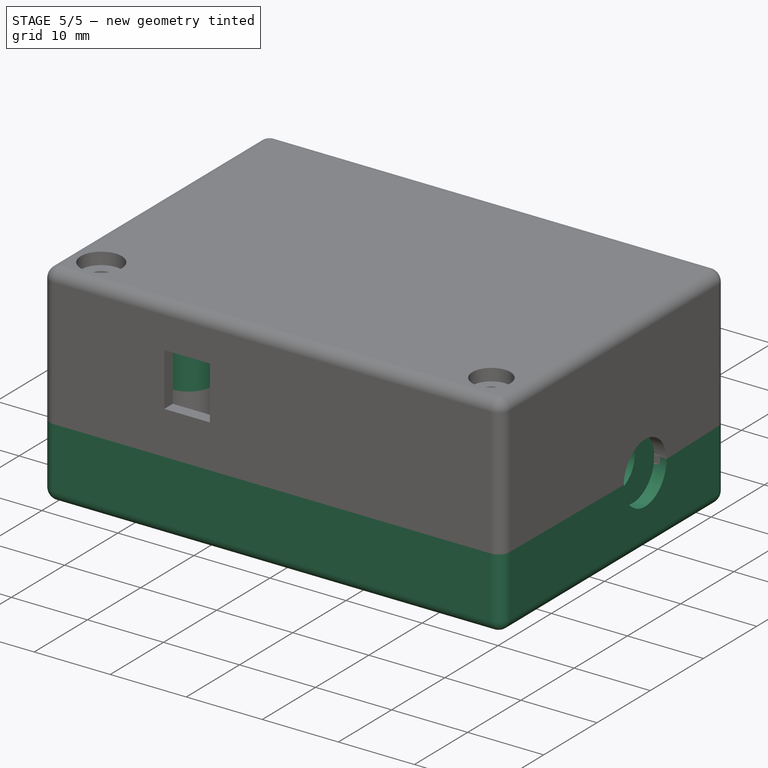
[diagram: stage 5 of 5 — iso view after this stage's code; geometry added in this stage tinted green]
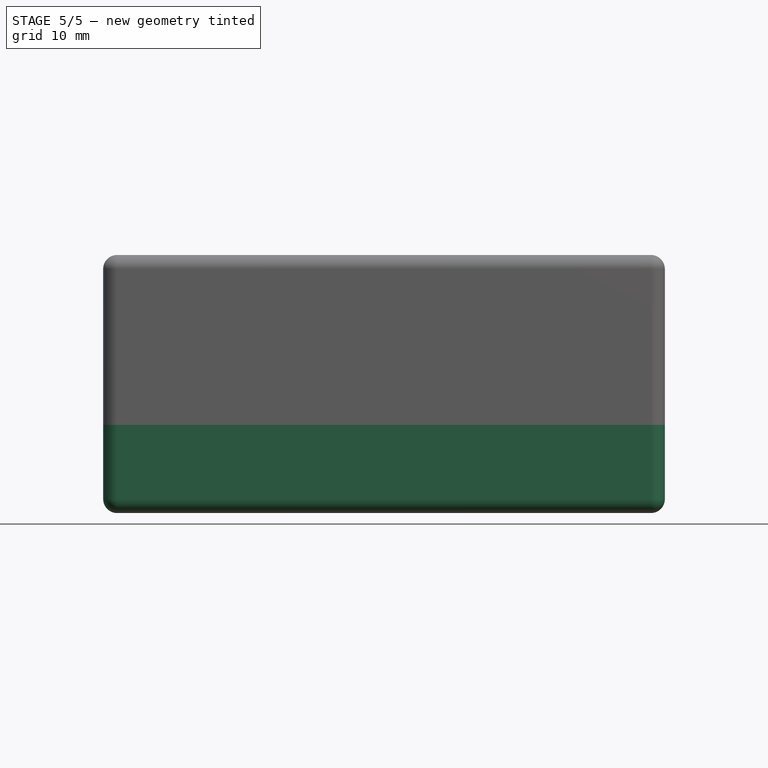
[diagram: stage 5 of 5 — front view after this stage's code; geometry added in this stage tinted green]
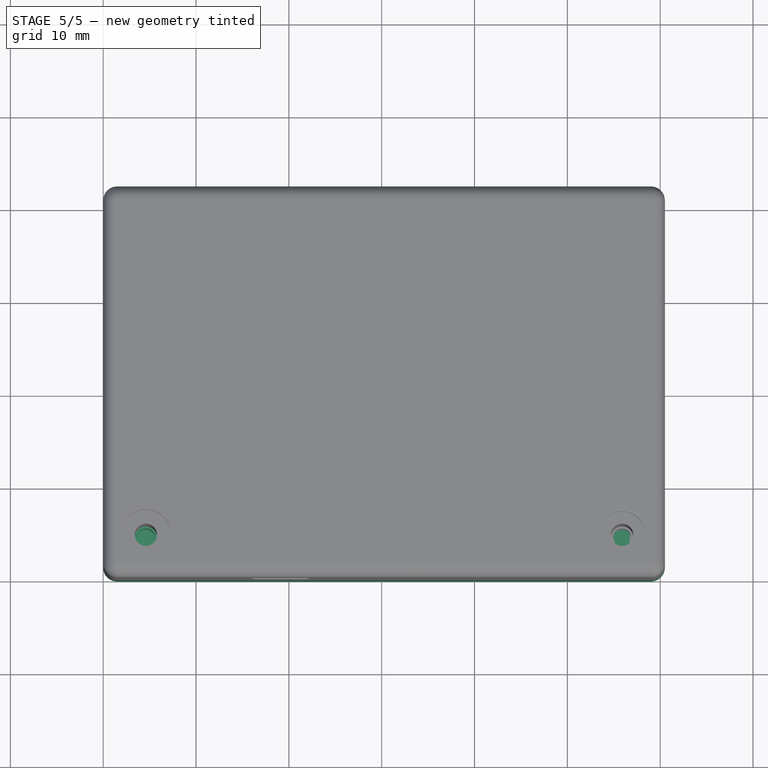
[diagram: stage 5 of 5 — top view after this stage's code; geometry added in this stage tinted green]
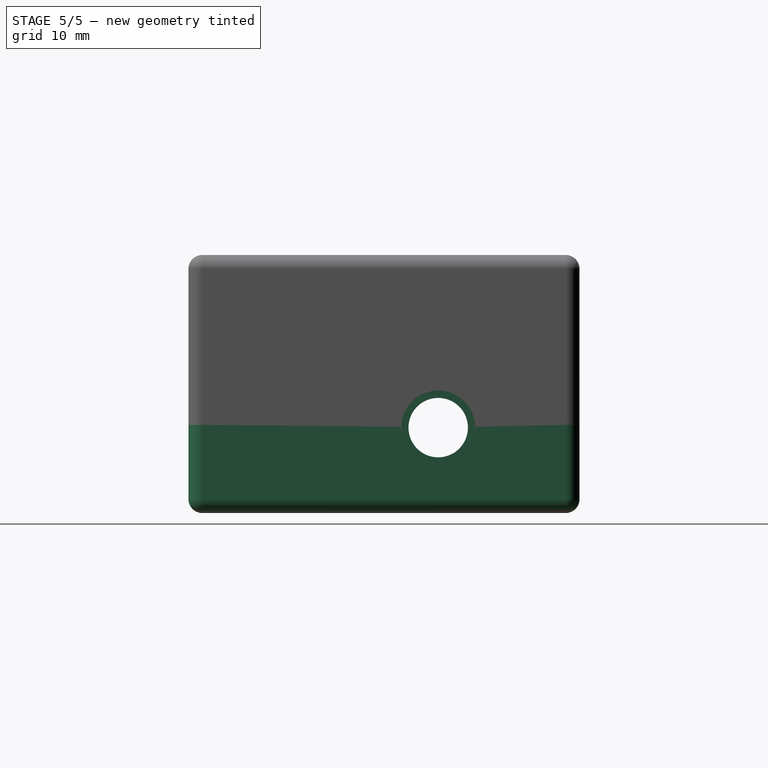
[diagram: stage 5 of 5 — right view after this stage's code; geometry added in this stage tinted green]
FEATURE [Part::FeaturePython] Slice_child0  label="Slice.0"  # WARN: FeaturePython — macro-defined, semantics opaque (R4)
  Base = -> Slice
  FilterType = 1
  Invert = false
  OverrideMaxVal = 0
  WindowFrom = 80
  WindowTo = 100
  items = 0
FEATURE [Part::MultiFuse] Fusion001
  Refine = true
  Shapes = -> [Slice_child0,Array001]
FEATURE [Part::FeaturePython] Slice001_child1  label="Slice001.1"  # WARN: FeaturePython — macro-defined, semantics opaque (R4)
  Base = -> Slice001
  FilterType = 1
  Invert = false
  OverrideMaxVal = 0
  WindowFrom = 80
  WindowTo = 100
  items = 1
FEATURE [App::DocumentObjectGroup] GrExplode_Slice001  label="Cable relief002"
  Group = -> [Slice001_child0,Slice001_child1]
FEATURE [Part::FeaturePython] Array002  # Draft array (typed FeaturePython)
  AlwaysSyncPlacement = false
  Angle = 360
  ArrayType = 0
  Axis = (0,0,1)
  Base = -> Slice001_child0
  Center = (0,0,0)
  Count = 2
  ExpandArray = false
  Fuse = false
  IntervalAxis = (0,0,0)
  IntervalX = (46.3,0,0)
  IntervalY = (0,100,0)
  IntervalZ = (0,0,100)
  NumberCircles = 3
  NumberPolar = 5
  NumberX = 2
  NumberY = 1
  NumberZ = 1
  PlacementList = 2 placements: [(0,0,0),(46.3,0,0)]
  RadialDistance = 50
  ScaleList = (2) [(1,1,1),(1,1,1)]
  Symmetry = 1
  TangentialDistance = 25
  expr: .IntervalX.x = Spreadsheet.pcb_width + Spreadsheet.pcb_to_case_clearence + Spreadsheet.cable_clamp_width
FEATURE [Part::MultiFuse] Fusion002
  Refine = true
  Shapes = -> [Fusion001,Array002]
FEATURE [Part::FeaturePython] Array003  label="Cable relief tops"  # Draft array (typed FeaturePython)
  AlwaysSyncPlacement = false
  Angle = 360
  ArrayType = 0
  Axis = (0,0,1)
  Base = -> Slice001_child1
  Center = (0,0,0)
  Count = 2
  ExpandArray = false
  Fuse = false
  IntervalAxis = (0,0,0)
  IntervalX = (46.3,0,0)
  IntervalY = (0,100,0)
  IntervalZ = (0,0,100)
  NumberCircles = 3
  NumberPolar = 5
  NumberX = 2
  NumberY = 1
  NumberZ = 1
  PlacementList = 2 placements: [(0,0,0),(46.3,0,0)]
  RadialDistance = 50
  ScaleList = (2) [(1,1,1),(1,1,1)]
  Symmetry = 1
  TangentialDistance = 25
  expr: .IntervalX.x = Spreadsheet.pcb_width + Spreadsheet.pcb_to_case_clearence + Spreadsheet.cable_clamp_width
FEATURE [PartDesign::Body] Body007  label="Körper003"
  AllowCompound = false
  Group = -> [Sketch007,Pad007]
  Origin = -> Origin020
  Placement = pos=(0,0,8.5) rot=(0,0,1;0rad)
  Tip = -> Pad007
FEATURE [Part::Cut] Cut003
  Base = -> Fusion002
  Refine = true
  Tool = -> Body007
FEATURE [Part::MultiFuse] Fusion004  label="Bottom final"
  Refine = true
  Shapes = -> [Part__Mirroring001,Body008,Cut003]
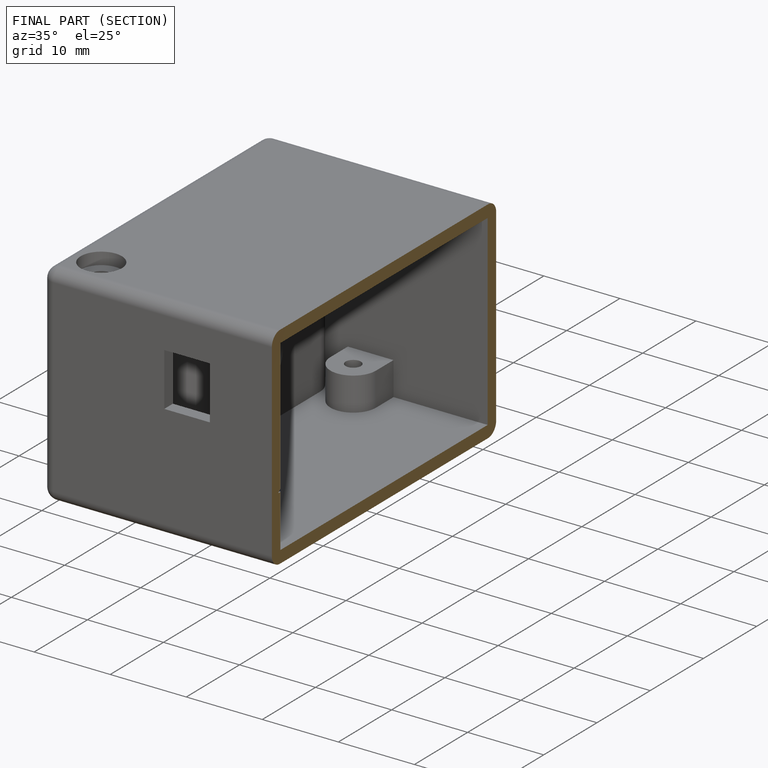
[diagram: finished part — half-section view (interior)]
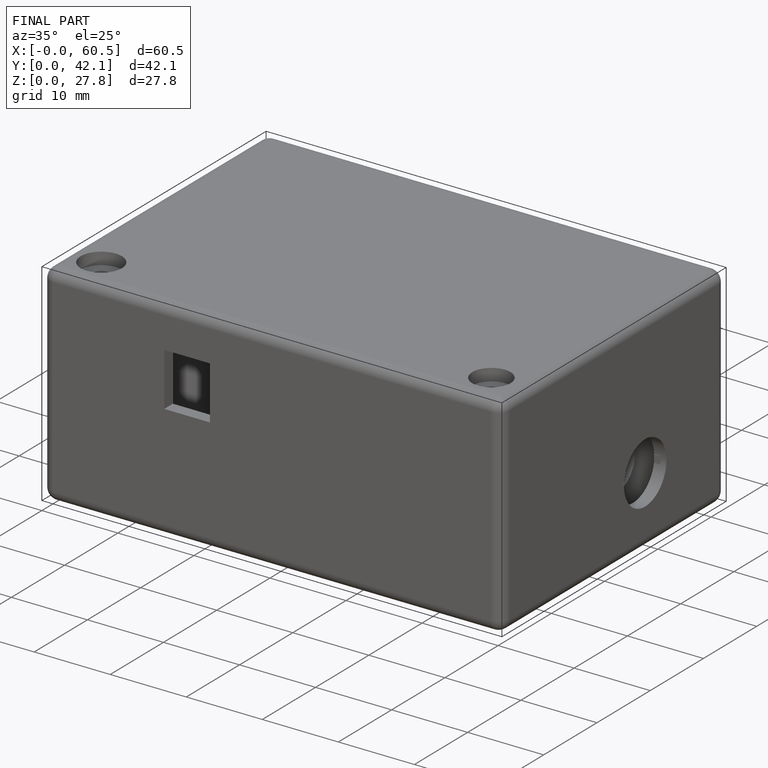
[diagram: finished part — iso view with bounding-box wireframe]
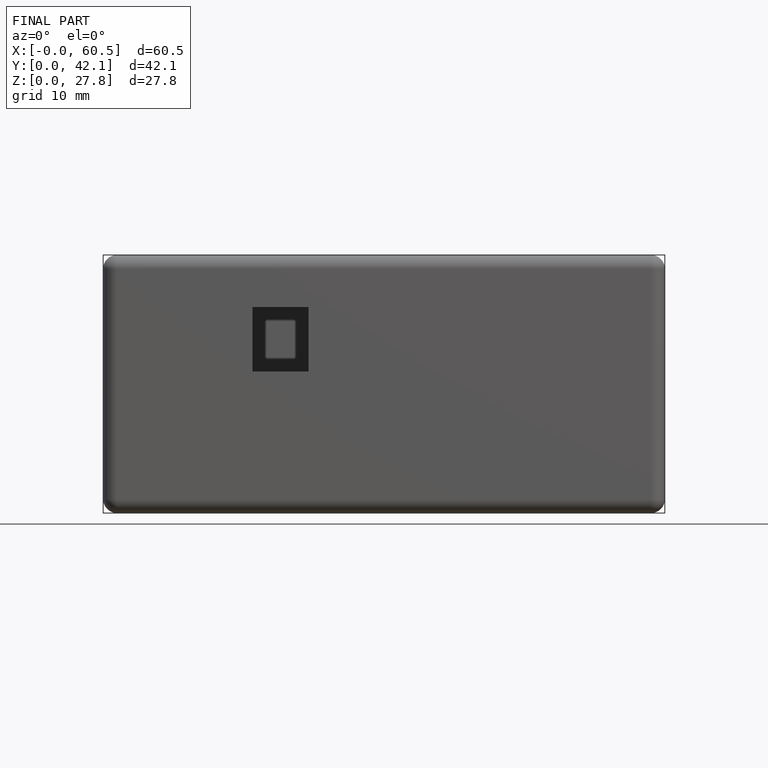
[diagram: finished part — front view with bounding-box wireframe]
